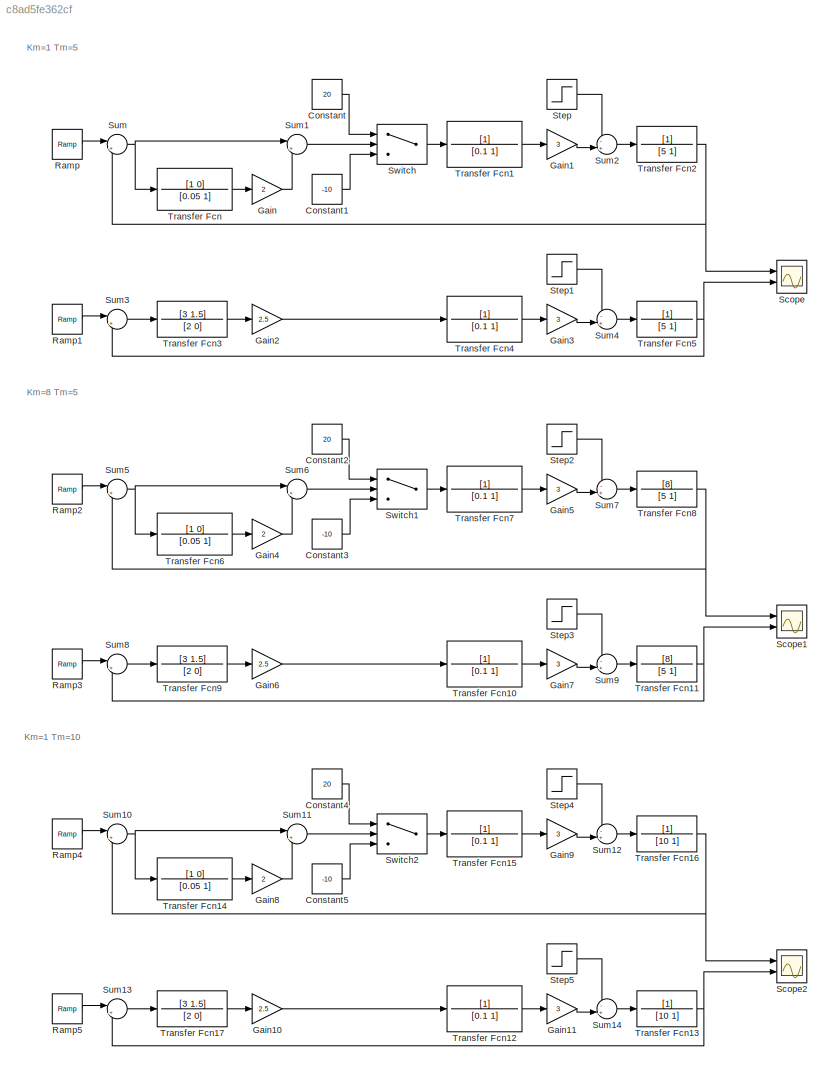
MODEL slx_c8ad5fe362cf
KIND model
CONFIG AbsTol = auto
CONFIG EnableMultiTasking = off
CONFIG FixedStep = 0.01
CONFIG MaxStep = auto
CONFIG MinStep = auto
CONFIG RelTol = 1e-3
CONFIG SampleTimeConstraint = Unconstrained
CONFIG Solver = ode4
CONFIG SolverName = ode4
CONFIG StartTime = 0.0
CONFIG StopTime = 4
BLOCK [Constant] Constant
  Value = 20
BLOCK [Constant] Constant1
  Value = -10
BLOCK [Constant] Constant2
  Value = 20
BLOCK [Constant] Constant3
  Value = -10
BLOCK [Constant] Constant4
  Value = 20
BLOCK [Constant] Constant5
  Value = -10
BLOCK [Gain] Gain
  Gain = 2
  OutDataTypeStr = Inherit: Inherit via internal rule
  ParamDataTypeStr = Inherit: Inherit via internal rule
  SaturateOnIntegerOverflow = off
BLOCK [Gain] Gain1
  Gain = 3
  OutDataTypeStr = Inherit: Inherit via internal rule
  ParamDataTypeStr = Inherit: Inherit via internal rule
  SaturateOnIntegerOverflow = off
BLOCK [Gain] Gain10
  Gain = 2.5
  OutDataTypeStr = Inherit: Inherit via internal rule
  ParamDataTypeStr = Inherit: Inherit via internal rule
  SaturateOnIntegerOverflow = off
BLOCK [Gain] Gain11
  Gain = 3
  OutDataTypeStr = Inherit: Inherit via internal rule
  ParamDataTypeStr = Inherit: Inherit via internal rule
  SaturateOnIntegerOverflow = off
BLOCK [Gain] Gain2
  Gain = 2.5
  OutDataTypeStr = Inherit: Inherit via internal rule
  ParamDataTypeStr = Inherit: Inherit via internal rule
  SaturateOnIntegerOverflow = off
BLOCK [Gain] Gain3
  Gain = 3
  OutDataTypeStr = Inherit: Inherit via internal rule
  ParamDataTypeStr = Inherit: Inherit via internal rule
  SaturateOnIntegerOverflow = off
BLOCK [Gain] Gain4
  Gain = 2
  OutDataTypeStr = Inherit: Inherit via internal rule
  ParamDataTypeStr = Inherit: Inherit via internal rule
  SaturateOnIntegerOverflow = off
BLOCK [Gain] Gain5
  Gain = 3
  OutDataTypeStr = Inherit: Inherit via internal rule
  ParamDataTypeStr = Inherit: Inherit via internal rule
  SaturateOnIntegerOverflow = off
BLOCK [Gain] Gain6
  Gain = 2.5
  OutDataTypeStr = Inherit: Inherit via internal rule
  ParamDataTypeStr = Inherit: Inherit via internal rule
  SaturateOnIntegerOverflow = off
BLOCK [Gain] Gain7
  Gain = 3
  OutDataTypeStr = Inherit: Inherit via internal rule
  ParamDataTypeStr = Inherit: Inherit via internal rule
  SaturateOnIntegerOverflow = off
BLOCK [Gain] Gain8
  Gain = 2
  OutDataTypeStr = Inherit: Inherit via internal rule
  ParamDataTypeStr = Inherit: Inherit via internal rule
  SaturateOnIntegerOverflow = off
BLOCK [Gain] Gain9
  Gain = 3
  OutDataTypeStr = Inherit: Inherit via internal rule
  ParamDataTypeStr = Inherit: Inherit via internal rule
  SaturateOnIntegerOverflow = off
BLOCK [Reference] Ramp  REF=simulink/Sources/Ramp
  Ports = [0, 1]
  SourceBlock = simulink/Sources/Ramp
  SourceProductBaseCode = SL
  SourceProductName = Simulink
  SourceType = Ramp
BLOCK [Reference] Ramp1  REF=simulink/Sources/Ramp
  Ports = [0, 1]
  SourceBlock = simulink/Sources/Ramp
  SourceProductBaseCode = SL
  SourceProductName = Simulink
  SourceType = Ramp
BLOCK [Reference] Ramp2  REF=simulink/Sources/Ramp
  Ports = [0, 1]
  SourceBlock = simulink/Sources/Ramp
  SourceProductBaseCode = SL
  SourceProductName = Simulink
  SourceType = Ramp
BLOCK [Reference] Ramp3  REF=simulink/Sources/Ramp
  Ports = [0, 1]
  SourceBlock = simulink/Sources/Ramp
  SourceProductBaseCode = SL
  SourceProductName = Simulink
  SourceType = Ramp
BLOCK [Reference] Ramp4  REF=simulink/Sources/Ramp
  Ports = [0, 1]
  SourceBlock = simulink/Sources/Ramp
  SourceProductBaseCode = SL
  SourceProductName = Simulink
  SourceType = Ramp
BLOCK [Reference] Ramp5  REF=simulink/Sources/Ramp
  Ports = [0, 1]
  SourceBlock = simulink/Sources/Ramp
  SourceProductBaseCode = SL
  SourceProductName = Simulink
  SourceType = Ramp
BLOCK [Scope] Scope
  NumInputPorts = 2
  Ports = [2]
  ScopeSpecificationString = Simulink.scopes.TimeScopeBlockCfg('CurrentConfiguration', extmgr.ConfigurationSet(extmgr.Configuration('Core','General UI',true),extmgr.Configuration('Core','Source UI',true),extmgr.Configuration('Sources','WiredSimulink',true),extmgr.Configuration('Visuals','Time Domain',true,'SerializedDisplays',{struct('MinYLimReal','-0.84277','MaxYLimReal','7.58491','YLabelReal','','MinYLimMag','0.00000','MaxY...<+1400ch>
BLOCK [Scope] Scope1
  NumInputPorts = 2
  Ports = [2]
  ScopeSpecificationString = Simulink.scopes.TimeScopeBlockCfg('CurrentConfiguration', extmgr.ConfigurationSet(extmgr.Configuration('Core','General UI',true),extmgr.Configuration('Core','Source UI',true),extmgr.Configuration('Sources','WiredSimulink',true,'DataLoggingVariableName','ScopeData1'),extmgr.Configuration('Visuals','Time Domain',true,'SerializedDisplays',{struct('MinYLimReal','-0.9165','MaxYLimReal','8.24851','YLabe...<+1438ch>
BLOCK [Scope] Scope2
  NumInputPorts = 2
  Ports = [2]
  ScopeSpecificationString = Simulink.scopes.TimeScopeBlockCfg('CurrentConfiguration', extmgr.ConfigurationSet(extmgr.Configuration('Core','General UI',true),extmgr.Configuration('Core','Source UI',true),extmgr.Configuration('Sources','WiredSimulink',true,'DataLoggingVariableName','ScopeData2'),extmgr.Configuration('Visuals','Time Domain',true,'SerializedDisplays',{struct('MinYLimReal','-0.8053','MaxYLimReal','7.24772','YLabe...<+1441ch>
BLOCK [Step] Step
  After = 15
  SampleTime = 0
  Time = 2.5
BLOCK [Step] Step1
  After = 15
  SampleTime = 0
  Time = 2.5
BLOCK [Step] Step2
  After = 15
  SampleTime = 0
  Time = 2.5
BLOCK [Step] Step3
  After = 15
  SampleTime = 0
  Time = 2.5
BLOCK [Step] Step4
  After = 15
  SampleTime = 0
  Time = 2.5
BLOCK [Step] Step5
  After = 15
  SampleTime = 0
  Time = 2.5
BLOCK [Sum] Sum
  IconShape = round
  InputSameDT = off
  Inputs = |+-
  OutDataTypeStr = Inherit: Inherit via internal rule
  Ports = [2, 1]
  SaturateOnIntegerOverflow = off
BLOCK [Sum] Sum1
  IconShape = round
  InputSameDT = off
  Inputs = |++
  OutDataTypeStr = Inherit: Inherit via internal rule
  Ports = [2, 1]
  SaturateOnIntegerOverflow = off
BLOCK [Sum] Sum10
  IconShape = round
  InputSameDT = off
  Inputs = |+-
  OutDataTypeStr = Inherit: Inherit via internal rule
  Ports = [2, 1]
  SaturateOnIntegerOverflow = off
BLOCK [Sum] Sum11
  IconShape = round
  InputSameDT = off
  Inputs = |++
  OutDataTypeStr = Inherit: Inherit via internal rule
  Ports = [2, 1]
  SaturateOnIntegerOverflow = off
BLOCK [Sum] Sum12
  IconShape = round
  InputSameDT = off
  Inputs = -+|
  OutDataTypeStr = Inherit: Inherit via internal rule
  Ports = [2, 1]
  SaturateOnIntegerOverflow = off
BLOCK [Sum] Sum13
  IconShape = round
  InputSameDT = off
  Inputs = |+-
  OutDataTypeStr = Inherit: Inherit via internal rule
  Ports = [2, 1]
  SaturateOnIntegerOverflow = off
BLOCK [Sum] Sum14
  IconShape = round
  InputSameDT = off
  Inputs = -+|
  OutDataTypeStr = Inherit: Inherit via internal rule
  Ports = [2, 1]
  SaturateOnIntegerOverflow = off
BLOCK [Sum] Sum2
  IconShape = round
  InputSameDT = off
  Inputs = -+|
  OutDataTypeStr = Inherit: Inherit via internal rule
  Ports = [2, 1]
  SaturateOnIntegerOverflow = off
BLOCK [Sum] Sum3
  IconShape = round
  InputSameDT = off
  Inputs = |+-
  OutDataTypeStr = Inherit: Inherit via internal rule
  Ports = [2, 1]
  SaturateOnIntegerOverflow = off
BLOCK [Sum] Sum4
  IconShape = round
  InputSameDT = off
  Inputs = -+|
  OutDataTypeStr = Inherit: Inherit via internal rule
  Ports = [2, 1]
  SaturateOnIntegerOverflow = off
BLOCK [Sum] Sum5
  IconShape = round
  InputSameDT = off
  Inputs = |+-
  OutDataTypeStr = Inherit: Inherit via internal rule
  Ports = [2, 1]
  SaturateOnIntegerOverflow = off
BLOCK [Sum] Sum6
  IconShape = round
  InputSameDT = off
  Inputs = |++
  OutDataTypeStr = Inherit: Inherit via internal rule
  Ports = [2, 1]
  SaturateOnIntegerOverflow = off
BLOCK [Sum] Sum7
  IconShape = round
  InputSameDT = off
  Inputs = -+|
  OutDataTypeStr = Inherit: Inherit via internal rule
  Ports = [2, 1]
  SaturateOnIntegerOverflow = off
BLOCK [Sum] Sum8
  IconShape = round
  InputSameDT = off
  Inputs = |+-
  OutDataTypeStr = Inherit: Inherit via internal rule
  Ports = [2, 1]
  SaturateOnIntegerOverflow = off
BLOCK [Sum] Sum9
  IconShape = round
  InputSameDT = off
  Inputs = -+|
  OutDataTypeStr = Inherit: Inherit via internal rule
  Ports = [2, 1]
  SaturateOnIntegerOverflow = off
BLOCK [Switch] Switch
  Criteria = u2 > Threshold
  InputSameDT = off
  SaturateOnIntegerOverflow = off
BLOCK [Switch] Switch1
  Criteria = u2 > Threshold
  InputSameDT = off
  SaturateOnIntegerOverflow = off
BLOCK [Switch] Switch2
  Criteria = u2 > Threshold
  InputSameDT = off
  SaturateOnIntegerOverflow = off
BLOCK [TransferFcn] Transfer Fcn
  Denominator = [0.05 1]
  Numerator = [1 0]
BLOCK [TransferFcn] Transfer Fcn1
  Denominator = [0.1 1]
BLOCK [TransferFcn] Transfer Fcn10
  Denominator = [0.1 1]
BLOCK [TransferFcn] Transfer Fcn11
  Denominator = [5 1]
  Numerator = [8]
BLOCK [TransferFcn] Transfer Fcn12
  Denominator = [0.1 1]
BLOCK [TransferFcn] Transfer Fcn13
  Denominator = [10 1]
BLOCK [TransferFcn] Transfer Fcn14
  Denominator = [0.05 1]
  Numerator = [1 0]
BLOCK [TransferFcn] Transfer Fcn15
  Denominator = [0.1 1]
BLOCK [TransferFcn] Transfer Fcn16
  Denominator = [10 1]
BLOCK [TransferFcn] Transfer Fcn17
  Denominator = [2 0]
  Numerator = [3 1.5]
BLOCK [TransferFcn] Transfer Fcn2
  Denominator = [5 1]
BLOCK [TransferFcn] Transfer Fcn3
  Denominator = [2 0]
  Numerator = [3 1.5]
BLOCK [TransferFcn] Transfer Fcn4
  Denominator = [0.1 1]
BLOCK [TransferFcn] Transfer Fcn5
  Denominator = [5 1]
BLOCK [TransferFcn] Transfer Fcn6
  Denominator = [0.05 1]
  Numerator = [1 0]
BLOCK [TransferFcn] Transfer Fcn7
  Denominator = [0.1 1]
BLOCK [TransferFcn] Transfer Fcn8
  Denominator = [5 1]
  Numerator = [8]
BLOCK [TransferFcn] Transfer Fcn9
  Denominator = [2 0]
  Numerator = [3 1.5]
ANNOTATION (root): Km=1 Tm=10
ANNOTATION (root): Km=8 Tm=5
ANNOTATION (root): Km=1 Tm=5
LINE Constant1:1 -> Switch:3
LINE Constant2:1 -> Switch1:1
LINE Constant3:1 -> Switch1:3
LINE Constant4:1 -> Switch2:1
LINE Constant5:1 -> Switch2:3
LINE Constant:1 -> Switch:1
LINE Gain10:1 -> Transfer Fcn12:1
LINE Gain11:1 -> Sum14:2
LINE Gain1:1 -> Sum2:2
LINE Gain2:1 -> Transfer Fcn4:1
LINE Gain3:1 -> Sum4:2
LINE Gain4:1 -> Sum6:2
LINE Gain5:1 -> Sum7:2
LINE Gain6:1 -> Transfer Fcn10:1
LINE Gain7:1 -> Sum9:2
LINE Gain8:1 -> Sum11:2
LINE Gain9:1 -> Sum12:2
LINE Gain:1 -> Sum1:2
LINE Ramp1:1 -> Sum3:1
LINE Ramp2:1 -> Sum5:1
LINE Ramp3:1 -> Sum8:1
LINE Ramp4:1 -> Sum10:1
LINE Ramp5:1 -> Sum13:1
LINE Ramp:1 -> Sum:1
LINE Step1:1 -> Sum4:1
LINE Step2:1 -> Sum7:1
LINE Step3:1 -> Sum9:1
LINE Step4:1 -> Sum12:1
LINE Step5:1 -> Sum14:1
LINE Step:1 -> Sum2:1
NET Sum10:1 -> Sum11:1, Transfer Fcn14:1
LINE Sum11:1 -> Switch2:2
LINE Sum12:1 -> Transfer Fcn16:1
LINE Sum13:1 -> Transfer Fcn17:1
LINE Sum14:1 -> Transfer Fcn13:1
LINE Sum1:1 -> Switch:2
LINE Sum2:1 -> Transfer Fcn2:1
LINE Sum3:1 -> Transfer Fcn3:1
LINE Sum4:1 -> Transfer Fcn5:1
NET Sum5:1 -> Sum6:1, Transfer Fcn6:1
LINE Sum6:1 -> Switch1:2
LINE Sum7:1 -> Transfer Fcn8:1
LINE Sum8:1 -> Transfer Fcn9:1
LINE Sum9:1 -> Transfer Fcn11:1
NET Sum:1 -> Sum1:1, Transfer Fcn:1
LINE Switch1:1 -> Transfer Fcn7:1
LINE Switch2:1 -> Transfer Fcn15:1
LINE Switch:1 -> Transfer Fcn1:1
LINE Transfer Fcn10:1 -> Gain7:1
NET Transfer Fcn11:1 -> Scope1:2, Sum8:2
LINE Transfer Fcn12:1 -> Gain11:1
NET Transfer Fcn13:1 -> Scope2:2, Sum13:2
LINE Transfer Fcn14:1 -> Gain8:1
LINE Transfer Fcn15:1 -> Gain9:1
NET Transfer Fcn16:1 -> Scope2:1, Sum10:2
LINE Transfer Fcn17:1 -> Gain10:1
LINE Transfer Fcn1:1 -> Gain1:1
NET Transfer Fcn2:1 -> Scope:1, Sum:2
LINE Transfer Fcn3:1 -> Gain2:1
LINE Transfer Fcn4:1 -> Gain3:1
NET Transfer Fcn5:1 -> Scope:2, Sum3:2
LINE Transfer Fcn6:1 -> Gain4:1
LINE Transfer Fcn7:1 -> Gain5:1
NET Transfer Fcn8:1 -> Scope1:1, Sum5:2
LINE Transfer Fcn9:1 -> Gain6:1
LINE Transfer Fcn:1 -> Gain:1
note: NET lines group one-source signal fan-out (src -> all destinations, sorted); 1:1 wires keep LINE
